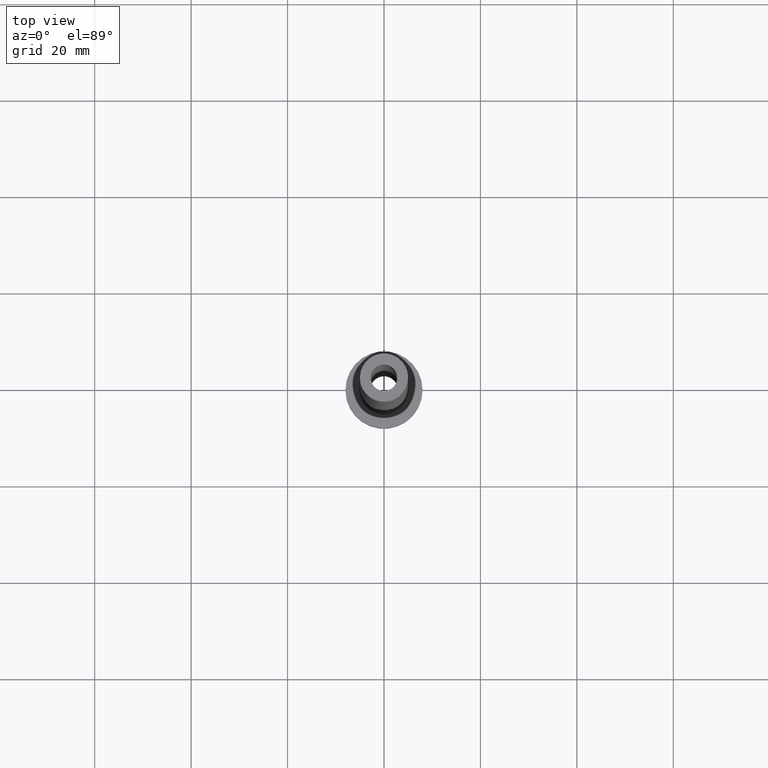
[diagram: clean part render]
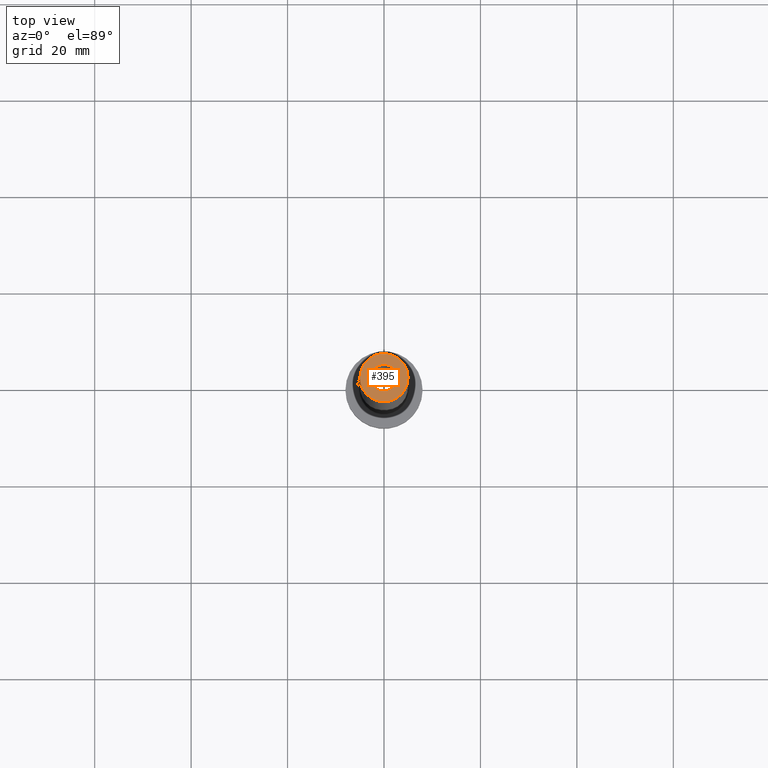
[diagram: same view with one face highlighted and labeled with its STEP entity id]
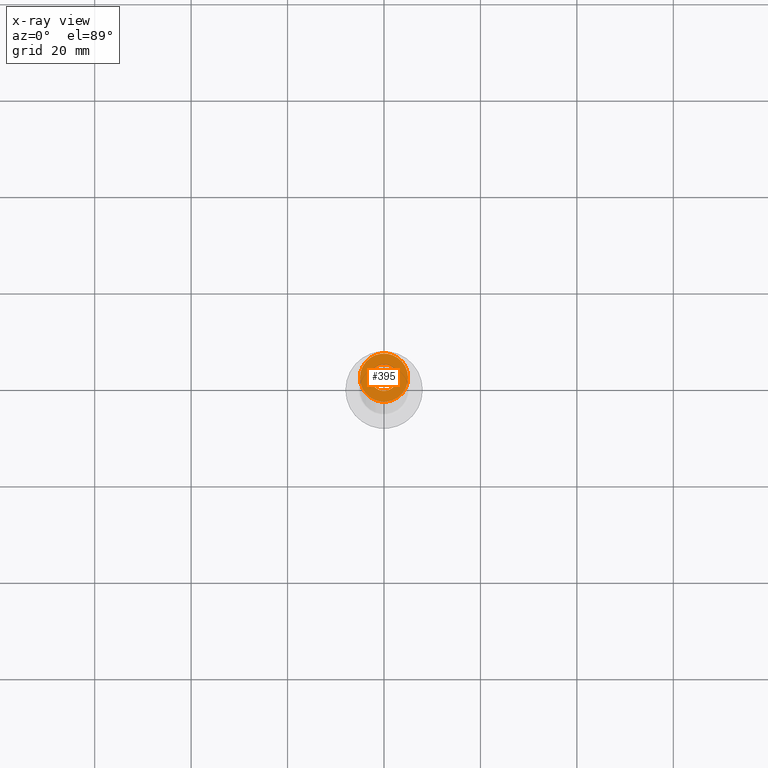
[diagram: x-ray of the same camera — body ghosted, the highlighted face saturated]
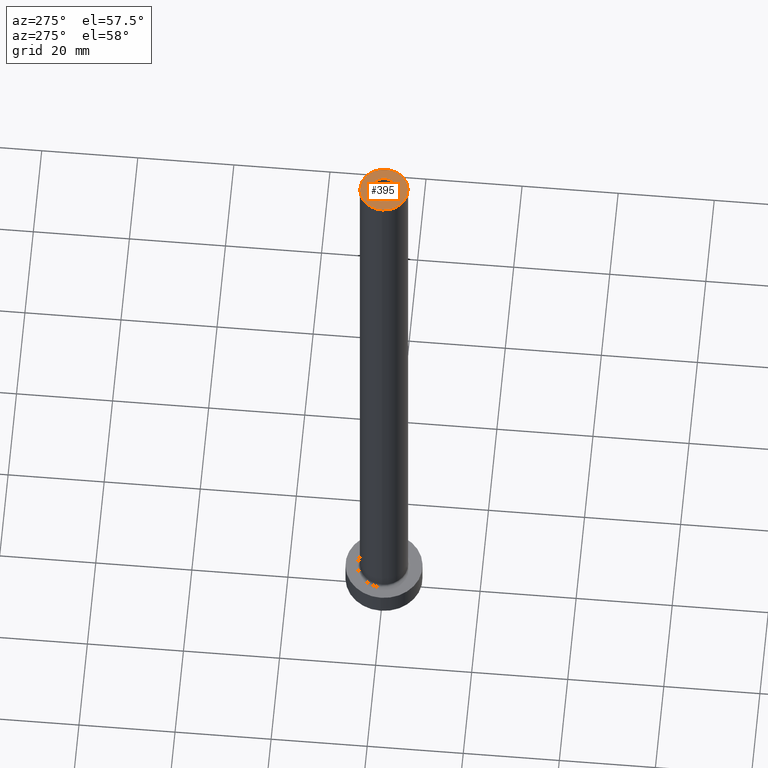
[diagram: same view with one face highlighted and labeled with its STEP entity id]
A machine part, top view. The second image highlights one B-rep face of the part: STEP entity #395.
The next image is the same camera in x-ray: the body ghosted, the highlighted face saturated — about 0% of this face is hidden behind the body in this view.
A second angle (auxiliary view) of the same face is appended — the face is thin or edge-on in the first view.
In plain terms, the highlighted planar face has unit normal (0, 0, 1).
Its self-contained STEP definition (entity closure, byte-faithful):
#1 = EDGE_LOOP ( 'NONE', ( #95, #261 ) ) ;
#7 = DIRECTION ( 'NONE',  ( 1.000000000000000000, 0.000000000000000000, 0.000000000000000000 ) ) ;
#17 = DIRECTION ( 'NONE',  ( 0.000000000000000000, 0.000000000000000000, 1.000000000000000000 ) ) ;
#48 = CARTESIAN_POINT ( 'NONE',  ( 0.000000000000000000, 0.000000000000000000, 150.0000000000000000 ) ) ;
#71 = DIRECTION ( 'NONE',  ( 1.000000000000000000, 0.000000000000000000, 0.000000000000000000 ) ) ;
#78 = EDGE_CURVE ( 'NONE', #426, #277, #398, .T. ) ;
#95 = ORIENTED_EDGE ( 'NONE', *, *, #105, .T. ) ;
#104 = DIRECTION ( 'NONE',  ( 0.000000000000000000, 0.000000000000000000, 1.000000000000000000 ) ) ;
#105 = EDGE_CURVE ( 'NONE', #130, #435, #330, .T. ) ;
#107 = EDGE_LOOP ( 'NONE', ( #382, #312 ) ) ;
#122 = CARTESIAN_POINT ( 'NONE',  ( 0.000000000000000000, 0.000000000000000000, 150.0000000000000000 ) ) ;
#130 = VERTEX_POINT ( 'NONE', #190 ) ;
#133 = AXIS2_PLACEMENT_3D ( 'NONE', #122, #17, #262 ) ;
#144 = AXIS2_PLACEMENT_3D ( 'NONE', #415, #383, #206 ) ;
#145 = DIRECTION ( 'NONE',  ( 0.000000000000000000, 0.000000000000000000, 1.000000000000000000 ) ) ;
#171 = FACE_OUTER_BOUND ( 'NONE', #1, .T. ) ;
#173 = CIRCLE ( 'NONE', #133, 5.000000000000000000 ) ;
#190 = CARTESIAN_POINT ( 'NONE',  ( -5.000000000000000000, 0.000000000000000000, 150.0000000000000000 ) ) ;
#192 = EDGE_CURVE ( 'NONE', #435, #130, #173, .T. ) ;
#206 = DIRECTION ( 'NONE',  ( 1.000000000000000000, 0.000000000000000000, -0.000000000000000000 ) ) ;
#218 = CARTESIAN_POINT ( 'NONE',  ( 0.000000000000000000, 0.000000000000000000, 150.0000000000000000 ) ) ;
#222 = AXIS2_PLACEMENT_3D ( 'NONE', #373, #104, #71 ) ;
#233 = CARTESIAN_POINT ( 'NONE',  ( 5.000000000000000000, 6.123233995736766282E-16, 150.0000000000000000 ) ) ;
#241 = FACE_BOUND ( 'NONE', #107, .T. ) ;
#257 = AXIS2_PLACEMENT_3D ( 'NONE', #218, #145, #289 ) ;
#261 = ORIENTED_EDGE ( 'NONE', *, *, #192, .T. ) ;
#262 = DIRECTION ( 'NONE',  ( 1.000000000000000000, 0.000000000000000000, 0.000000000000000000 ) ) ;
#277 = VERTEX_POINT ( 'NONE', #321 ) ;
#289 = DIRECTION ( 'NONE',  ( 1.000000000000000000, 0.000000000000000000, 0.000000000000000000 ) ) ;
#312 = ORIENTED_EDGE ( 'NONE', *, *, #368, .F. ) ;
#321 = CARTESIAN_POINT ( 'NONE',  ( 2.750000000000000000, 3.367778697655220519E-16, 150.0000000000000000 ) ) ;
#330 = CIRCLE ( 'NONE', #367, 5.000000000000000000 ) ;
#345 = CARTESIAN_POINT ( 'NONE',  ( -2.750000000000000000, 0.000000000000000000, 150.0000000000000000 ) ) ;
#352 = DIRECTION ( 'NONE',  ( 0.000000000000000000, 0.000000000000000000, 1.000000000000000000 ) ) ;
#366 = CIRCLE ( 'NONE', #222, 2.750000000000000000 ) ;
#367 = AXIS2_PLACEMENT_3D ( 'NONE', #48, #352, #7 ) ;
#368 = EDGE_CURVE ( 'NONE', #277, #426, #366, .T. ) ;
#373 = CARTESIAN_POINT ( 'NONE',  ( 0.000000000000000000, 0.000000000000000000, 150.0000000000000000 ) ) ;
#376 = PLANE ( 'NONE',  #144 ) ;
#382 = ORIENTED_EDGE ( 'NONE', *, *, #78, .F. ) ;
#383 = DIRECTION ( 'NONE',  ( 0.000000000000000000, 0.000000000000000000, 1.000000000000000000 ) ) ;
#395 = ADVANCED_FACE ( 'NONE', ( #241, #171 ), #376, .T. ) ;
#398 = CIRCLE ( 'NONE', #257, 2.750000000000000000 ) ;
#415 = CARTESIAN_POINT ( 'NONE',  ( 0.000000000000000000, 0.000000000000000000, 150.0000000000000000 ) ) ;
#426 = VERTEX_POINT ( 'NONE', #345 ) ;
#435 = VERTEX_POINT ( 'NONE', #233 ) ;